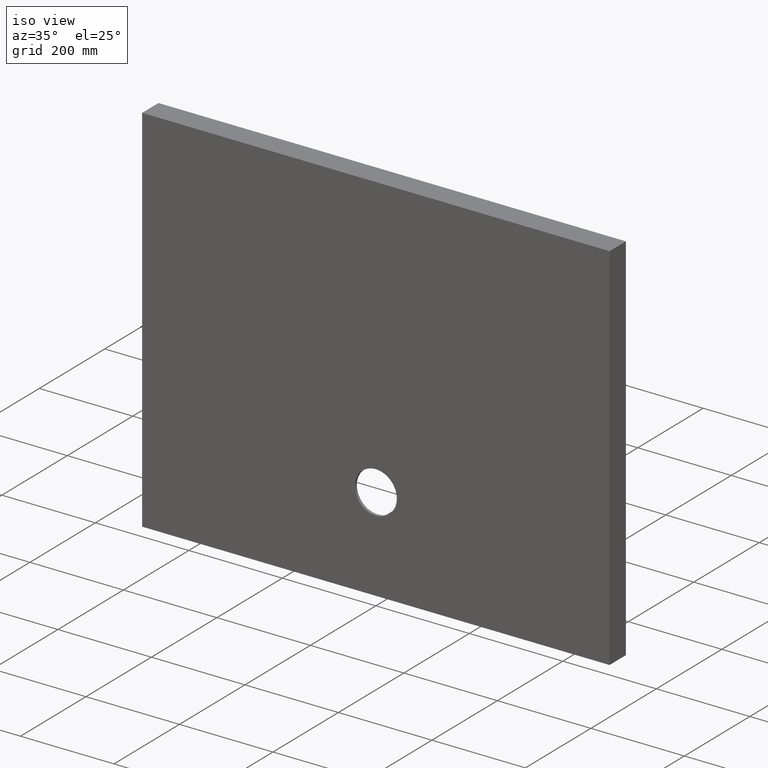
[diagram: clean part render]
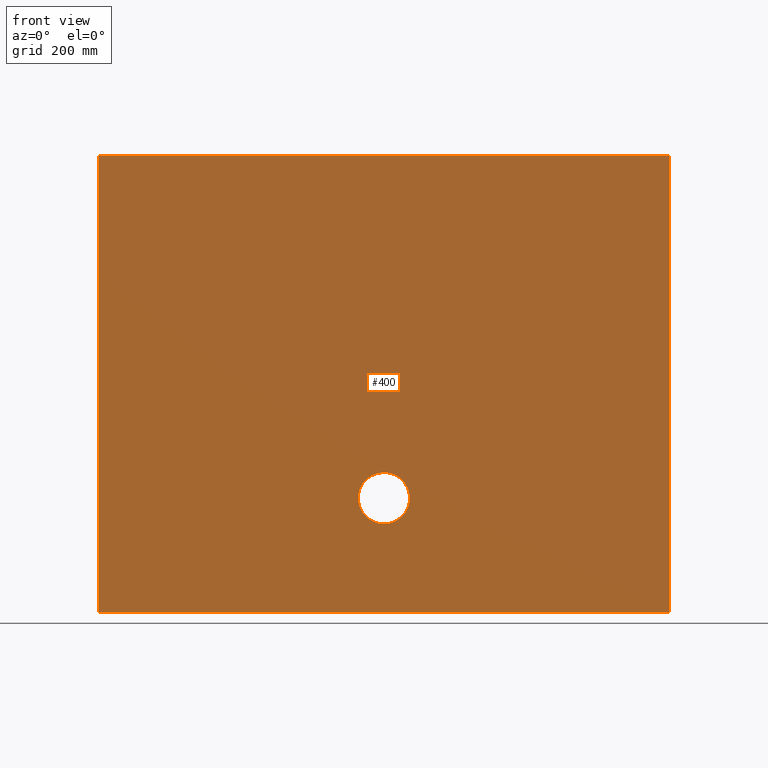
[diagram: tour spotlight — one face highlighted and labeled with its STEP entity id]
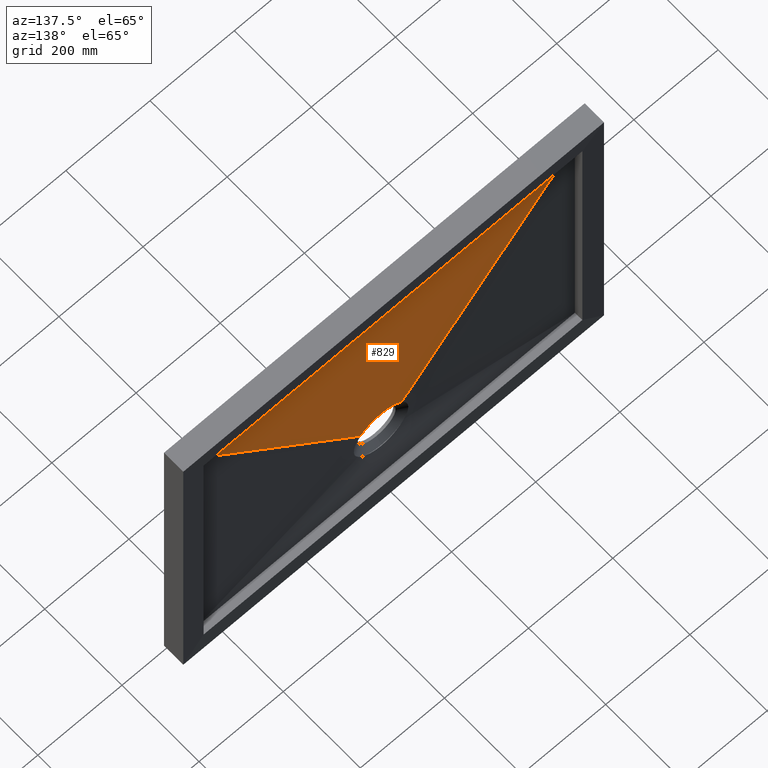
[diagram: tour spotlight — one face highlighted and labeled with its STEP entity id]
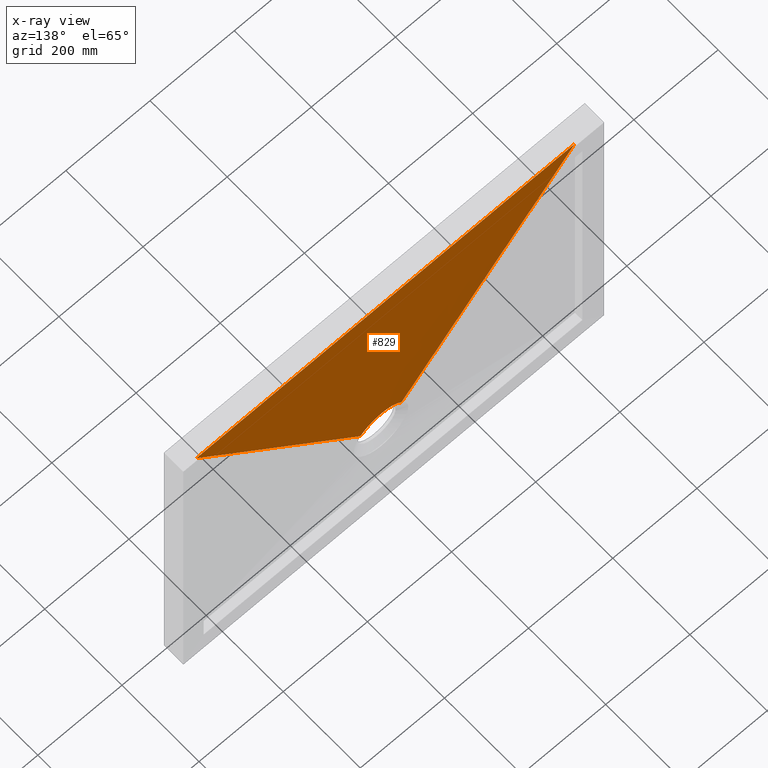
[diagram: x-ray of the same camera — body ghosted, this tour face saturated]
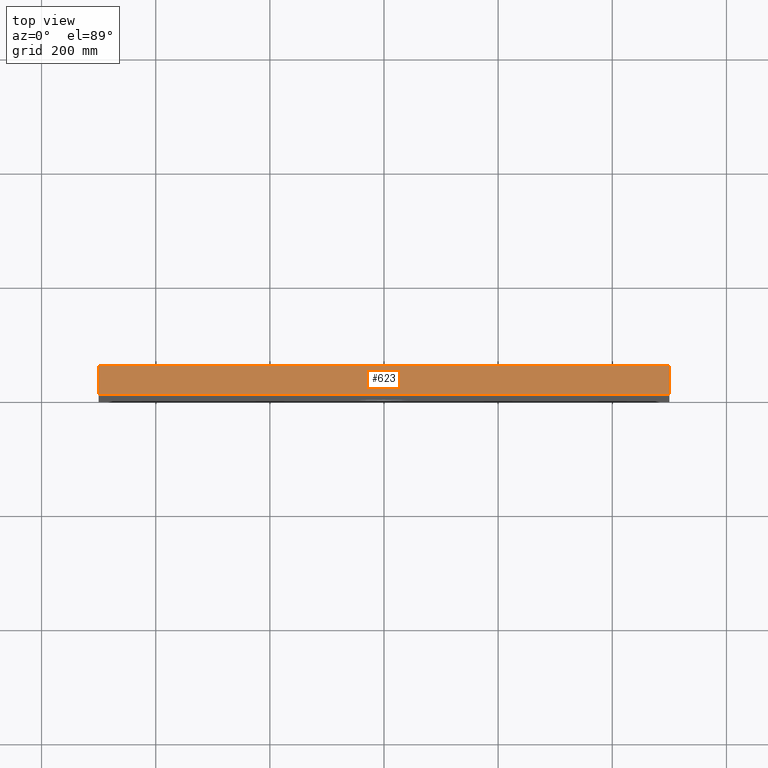
[diagram: tour spotlight — one face highlighted and labeled with its STEP entity id]
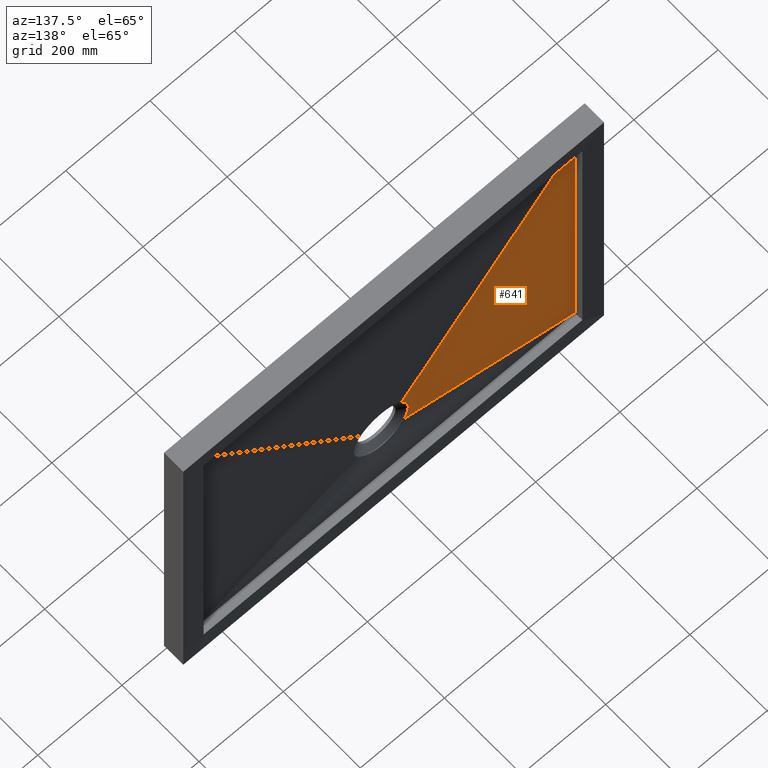
[diagram: tour spotlight — one face highlighted and labeled with its STEP entity id]
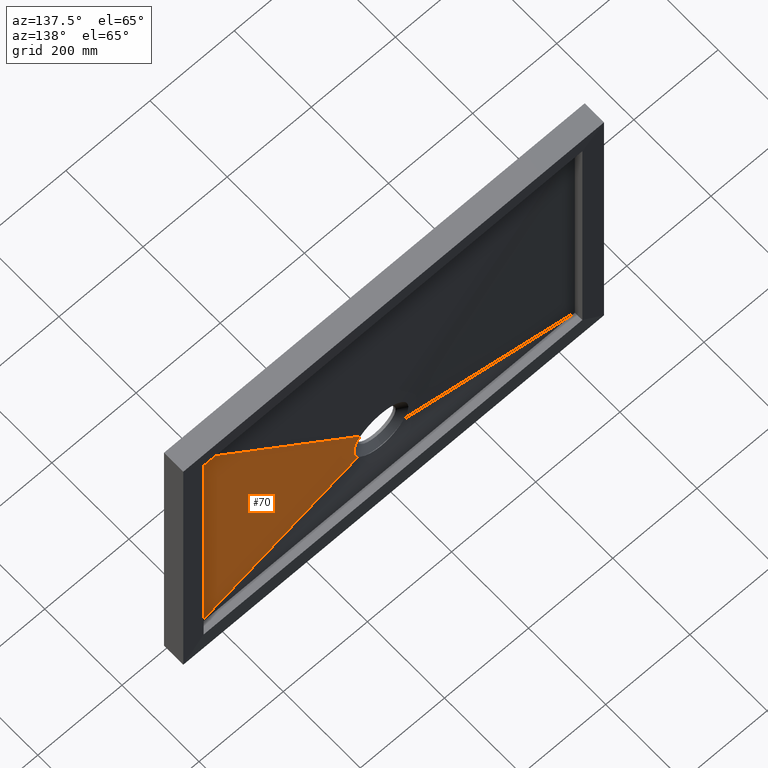
[diagram: tour spotlight — one face highlighted and labeled with its STEP entity id]
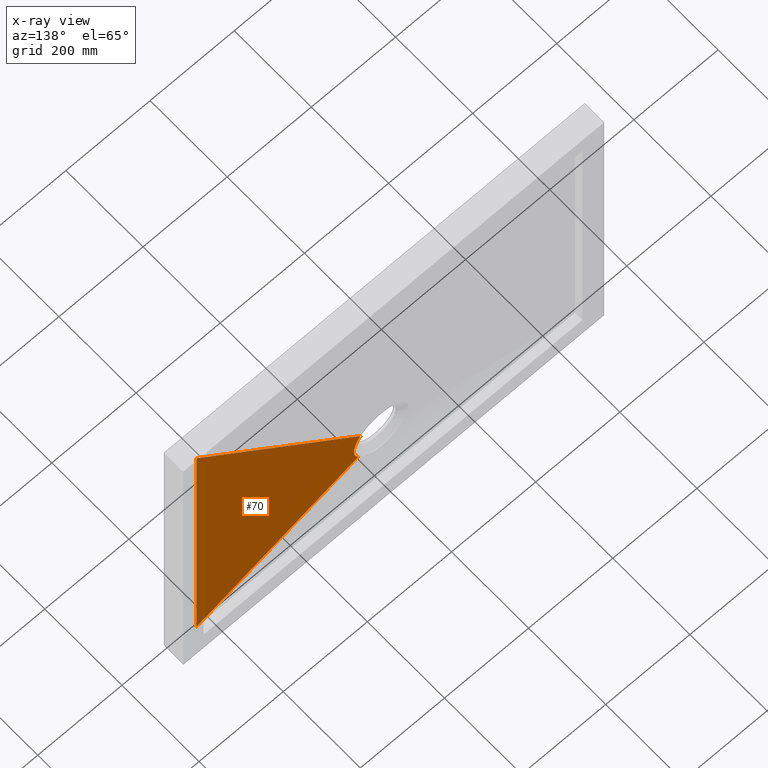
[diagram: x-ray of the same camera — body ghosted, this tour face saturated]
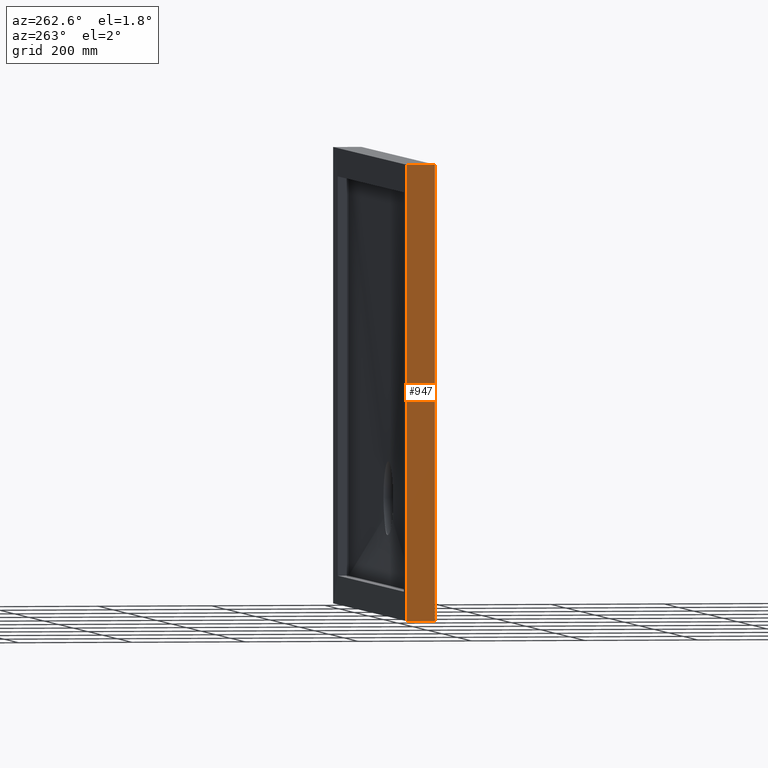
[diagram: tour spotlight — one face highlighted and labeled with its STEP entity id]
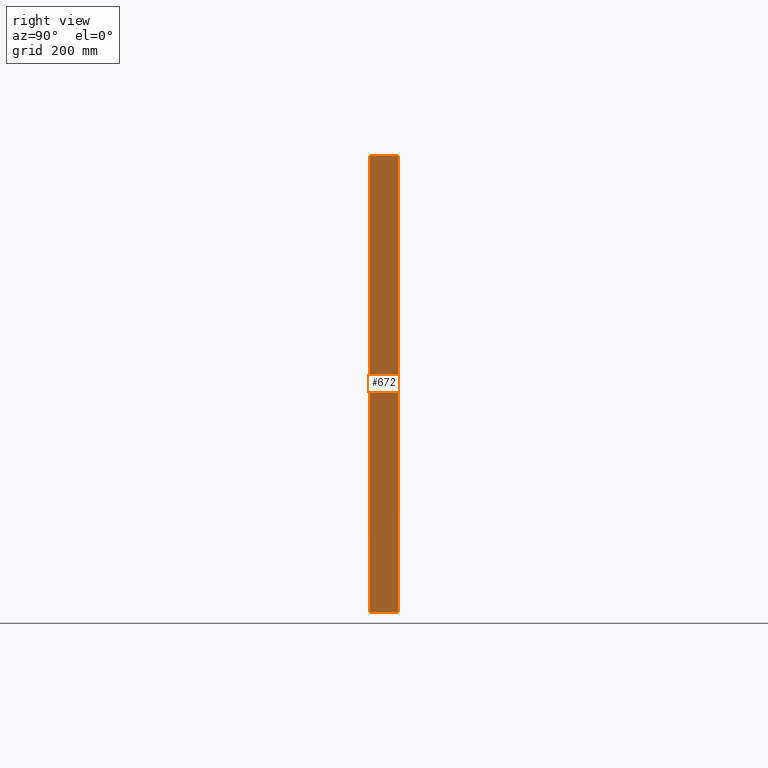
[diagram: tour spotlight — one face highlighted and labeled with its STEP entity id]
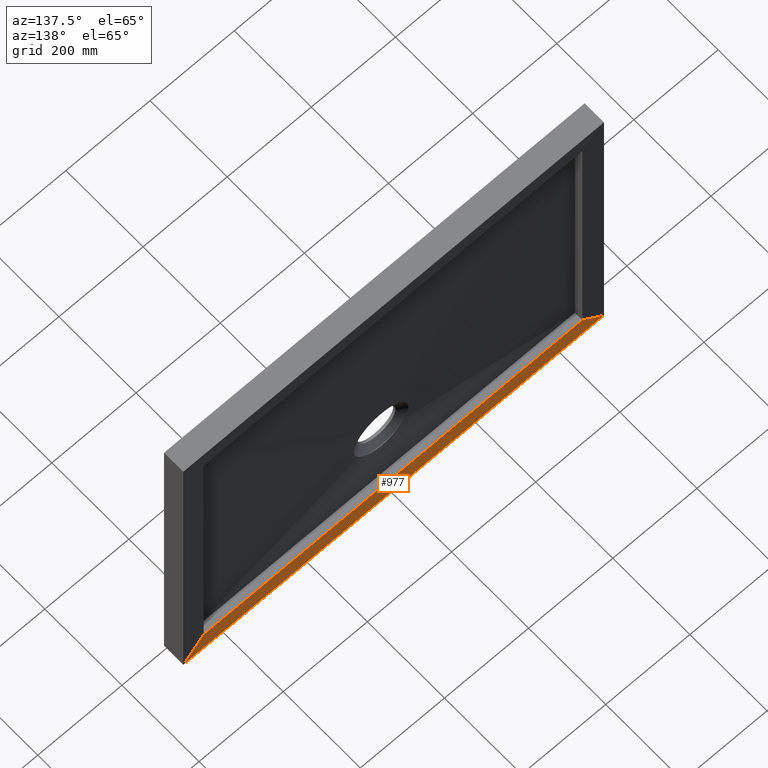
[diagram: tour spotlight — one face highlighted and labeled with its STEP entity id]
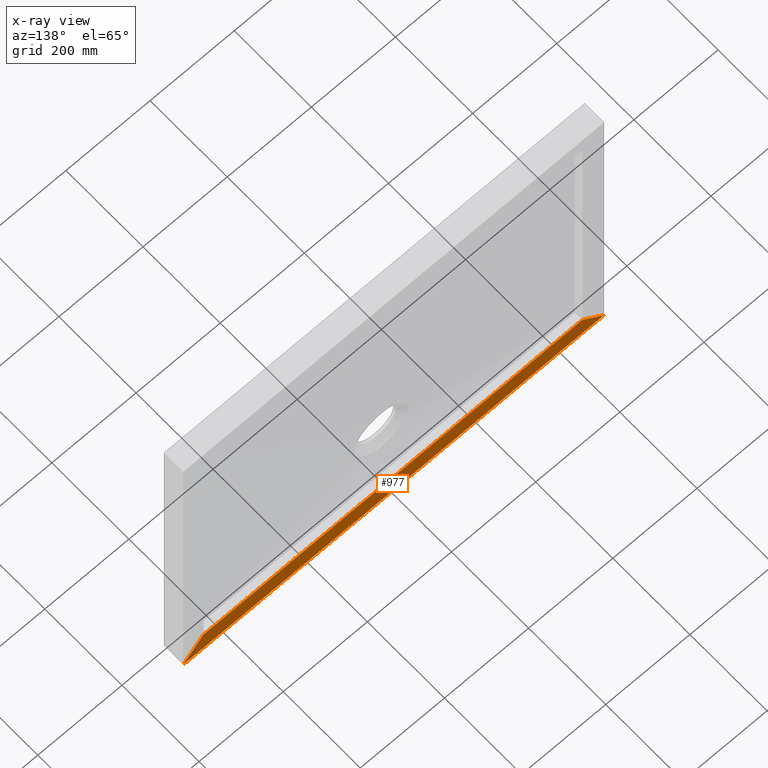
[diagram: x-ray of the same camera — body ghosted, this tour face saturated]
A machine part: a face-by-face anatomy tour. The part has 24 B-rep faces; the first image is the clean iso view, then the 8 largest visible faces are spotlighted one at a time (largest first), each with its STEP entity span.

Face 1 — front view, entity #400. In plain terms, the highlighted planar face has unit normal (0, 1, 0).
Definition (entity closure, byte-faithful):
#36 = CARTESIAN_POINT ( 'NONE',  ( 1.110223024625156500E-013, 0.0000000000000000000, -199.9999999999998600 ) ) ;
#98 = CARTESIAN_POINT ( 'NONE',  ( 500.0000000000001100, 0.0000000000000000000, -399.9999999999998300 ) ) ;
#99 = AXIS2_PLACEMENT_3D ( 'NONE', #167, #461, #598 ) ;
#112 = AXIS2_PLACEMENT_3D ( 'NONE', #198, #622, #401 ) ;
#150 = VERTEX_POINT ( 'NONE', #530 ) ;
#158 = DIRECTION ( 'NONE',  ( 1.387778780781445700E-016, 0.0000000000000000000, 1.000000000000000000 ) ) ;
#167 = CARTESIAN_POINT ( 'NONE',  ( -499.9999999999997700, 0.0000000000000000000, 400.0000000000001700 ) ) ;
#169 = CARTESIAN_POINT ( 'NONE',  ( -499.9999999999998900, 0.0000000000000000000, -399.9999999999998300 ) ) ;
#170 = CARTESIAN_POINT ( 'NONE',  ( 1.110223024625156500E-013, 0.0000000000000000000, -154.9999999999998900 ) ) ;
#178 = EDGE_CURVE ( 'NONE', #567, #353, #468, .T. ) ;
#186 = ORIENTED_EDGE ( 'NONE', *, *, #234, .F. ) ;
#198 = CARTESIAN_POINT ( 'NONE',  ( 1.110223024625156500E-013, 0.0000000000000000000, -199.9999999999998600 ) ) ;
#229 = CARTESIAN_POINT ( 'NONE',  ( -499.9999999999998900, 0.0000000000000000000, -399.9999999999998300 ) ) ;
#234 = EDGE_CURVE ( 'NONE', #150, #348, #750, .T. ) ;
#242 = EDGE_LOOP ( 'NONE', ( #604, #456, #610, #186 ) ) ;
#261 = EDGE_CURVE ( 'NONE', #353, #567, #807, .T. ) ;
#267 = ORIENTED_EDGE ( 'NONE', *, *, #178, .T. ) ;
#328 = LINE ( 'NONE', #98, #766 ) ;
#348 = VERTEX_POINT ( 'NONE', #637 ) ;
#353 = VERTEX_POINT ( 'NONE', #170 ) ;
#371 = FACE_BOUND ( 'NONE', #674, .T. ) ;
#373 = EDGE_CURVE ( 'NONE', #348, #405, #328, .T. ) ;
#388 = EDGE_CURVE ( 'NONE', #405, #1014, #551, .T. ) ;
#394 = CARTESIAN_POINT ( 'NONE',  ( -499.9999999999998900, 0.0000000000000000000, -399.9999999999998300 ) ) ;
#400 = ADVANCED_FACE ( 'NONE', ( #371, #944 ), #614, .F. ) ;
#401 = DIRECTION ( 'NONE',  ( 0.0000000000000000000, 0.0000000000000000000, 1.000000000000000000 ) ) ;
#405 = VERTEX_POINT ( 'NONE', #904 ) ;
#435 = CARTESIAN_POINT ( 'NONE',  ( -499.9999999999997700, 0.0000000000000000000, 400.0000000000001700 ) ) ;
#456 = ORIENTED_EDGE ( 'NONE', *, *, #388, .F. ) ;
#461 = DIRECTION ( 'NONE',  ( 0.0000000000000000000, 1.000000000000000000, 0.0000000000000000000 ) ) ;
#468 = CIRCLE ( 'NONE', #112, 44.99999999999995700 ) ;
#486 = DIRECTION ( 'NONE',  ( 0.0000000000000000000, 0.0000000000000000000, 1.000000000000000000 ) ) ;
#530 = CARTESIAN_POINT ( 'NONE',  ( -499.9999999999997700, 0.0000000000000000000, 400.0000000000001700 ) ) ;
#551 = LINE ( 'NONE', #394, #868 ) ;
#552 = EDGE_CURVE ( 'NONE', #1014, #150, #555, .T. ) ;
#555 = LINE ( 'NONE', #229, #951 ) ;
#567 = VERTEX_POINT ( 'NONE', #877 ) ;
#597 = VECTOR ( 'NONE', #938, 1000.000000000000000 ) ;
#598 = DIRECTION ( 'NONE',  ( 0.0000000000000000000, -0.0000000000000000000, 1.000000000000000000 ) ) ;
#604 = ORIENTED_EDGE ( 'NONE', *, *, #552, .F. ) ;
#610 = ORIENTED_EDGE ( 'NONE', *, *, #373, .F. ) ;
#614 = PLANE ( 'NONE',  #99 ) ;
#622 = DIRECTION ( 'NONE',  ( 0.0000000000000000000, 1.000000000000000000, 0.0000000000000000000 ) ) ;
#637 = CARTESIAN_POINT ( 'NONE',  ( 500.0000000000002300, 0.0000000000000000000, 400.0000000000001700 ) ) ;
#662 = DIRECTION ( 'NONE',  ( -1.387778780781445700E-016, -0.0000000000000000000, -1.000000000000000000 ) ) ;
#674 = EDGE_LOOP ( 'NONE', ( #680, #267 ) ) ;
#680 = ORIENTED_EDGE ( 'NONE', *, *, #261, .T. ) ;
#712 = DIRECTION ( 'NONE',  ( 0.0000000000000000000, 1.000000000000000000, 0.0000000000000000000 ) ) ;
#750 = LINE ( 'NONE', #435, #597 ) ;
#753 = AXIS2_PLACEMENT_3D ( 'NONE', #36, #712, #486 ) ;
#766 = VECTOR ( 'NONE', #662, 1000.000000000000000 ) ;
#807 = CIRCLE ( 'NONE', #753, 44.99999999999995700 ) ;
#818 = DIRECTION ( 'NONE',  ( -1.000000000000000000, -0.0000000000000000000, -0.0000000000000000000 ) ) ;
#868 = VECTOR ( 'NONE', #818, 1000.000000000000000 ) ;
#877 = CARTESIAN_POINT ( 'NONE',  ( 1.165332130586787400E-013, 0.0000000000000000000, -244.9999999999998000 ) ) ;
#904 = CARTESIAN_POINT ( 'NONE',  ( 500.0000000000001100, 0.0000000000000000000, -399.9999999999998300 ) ) ;
#938 = DIRECTION ( 'NONE',  ( 1.000000000000000000, 0.0000000000000000000, 0.0000000000000000000 ) ) ;
#944 = FACE_OUTER_BOUND ( 'NONE', #242, .T. ) ;
#951 = VECTOR ( 'NONE', #158, 1000.000000000000000 ) ;
#1014 = VERTEX_POINT ( 'NONE', #169 ) ;

Face 2 — auxiliary view, entity #829. An x-ray twin of the same camera follows (body ghosted, this face saturated) — the face is partly hidden behind the body. In plain terms, the highlighted face is a freeform B-spline surface patch.
Definition (entity closure, byte-faithful):
#2 = EDGE_CURVE ( 'NONE', #912, #988, #606, .T. ) ;
#5 = CARTESIAN_POINT ( 'NONE',  ( 150.0000000000010800, 29.00000000000000400, 350.0000000000002300 ) ) ;
#31 = CARTESIAN_POINT ( 'NONE',  ( -6.649790402214011300E-014, 17.32753171431355800, -135.3801395464610400 ) ) ;
#42 = CARTESIAN_POINT ( 'NONE',  ( -40.25696308619268400, 17.00000000000000000, -168.6890287107388200 ) ) ;
#43 = CARTESIAN_POINT ( 'NONE',  ( 9.219988134964461700, 17.32476754570779300, -136.0355039813597700 ) ) ;
#44 = CARTESIAN_POINT ( 'NONE',  ( -131.2499999999989200, 29.00000000000000000, 350.0000000000002300 ) ) ;
#46 = CARTESIAN_POINT ( 'NONE',  ( 16.04824121374895200, 17.31921635395701000, -137.3767490206983300 ) ) ;
#50 = EDGE_CURVE ( 'NONE', #534, #912, #231, .T. ) ;
#52 = ORIENTED_EDGE ( 'NONE', *, *, #2, .F. ) ;
#60 = CARTESIAN_POINT ( 'NONE',  ( -28.93101260800292700, 17.30029041912234400, -142.2594490762226900 ) ) ;
#75 = CARTESIAN_POINT ( 'NONE',  ( -2.299691664269409900, 17.32753171431355500, -135.3801395464610400 ) ) ;
#102 = CARTESIAN_POINT ( 'NONE',  ( 38.19734770157749200, 16.99999999999999600, -166.0409517876618400 ) ) ;
#104 = CARTESIAN_POINT ( 'NONE',  ( -449.9999999999997700, 29.00000000000000000, 350.0000000000002300 ) ) ;
#105 = CARTESIAN_POINT ( 'NONE',  ( 450.0000000000002300, 29.00000000000000000, 350.0000000000002300 ) ) ;
#115 = CARTESIAN_POINT ( 'NONE',  ( -24.75279780087052800, 17.30763211981673800, -140.3016841817969900 ) ) ;
#123 = CARTESIAN_POINT ( 'NONE',  ( 32.04517180526613600, 17.29419359159566500, -143.9400926359729500 ) ) ;
#133 = CARTESIAN_POINT ( 'NONE',  ( 187.5000000000010200, 29.00000000000000400, 350.0000000000002300 ) ) ;
#137 = CARTESIAN_POINT ( 'NONE',  ( -6.649790402214011300E-014, 17.32753171431355800, -135.3801395464610400 ) ) ;
#152 = EDGE_CURVE ( 'NONE', #351, #534, #219, .T. ) ;
#173 = CARTESIAN_POINT ( 'NONE',  ( -374.9999999999996000, 29.00000000000000400, 350.0000000000002800 ) ) ;
#181 = CARTESIAN_POINT ( 'NONE',  ( 93.75000000000113700, 29.00000000000000400, 350.0000000000002300 ) ) ;
#205 = CARTESIAN_POINT ( 'NONE',  ( 35.02235572952306300, 17.28789454095838000, -145.7261570313716300 ) ) ;
#209 = CARTESIAN_POINT ( 'NONE',  ( -30.09080413276331700, 16.99999999999999600, -158.7791650302297300 ) ) ;
#219 = B_SPLINE_CURVE_WITH_KNOTS ( 'NONE', 3,
 ( #105, #729, #501, #384 ),
 .UNSPECIFIED., .F., .F.,
 ( 4, 4 ),
 ( 0.0000000000000000000, 1.000000000000000000 ),
 .UNSPECIFIED. ) ;
#224 = CARTESIAN_POINT ( 'NONE',  ( -30.97913410367706500, 17.29632513966301100, -143.3486486768623300 ) ) ;
#226 = CARTESIAN_POINT ( 'NONE',  ( -318.7499999999994300, 29.00000000000000400, 350.0000000000002800 ) ) ;
#227 = CARTESIAN_POINT ( 'NONE',  ( -16.03017960478391800, 17.31923655455719300, -137.3717812433093300 ) ) ;
#231 = LINE ( 'NONE', #444, #496 ) ;
#245 = CARTESIAN_POINT ( 'NONE',  ( -412.4999999999997200, 29.00000000000000400, 350.0000000000002300 ) ) ;
#251 = CARTESIAN_POINT ( 'NONE',  ( -93.74999999999889200, 29.00000000000000000, 350.0000000000002300 ) ) ;
#285 = CARTESIAN_POINT ( 'NONE',  ( -74.99999999999887700, 29.00000000000000000, 350.0000000000002300 ) ) ;
#298 = CARTESIAN_POINT ( 'NONE',  ( 24.77326687117305700, 17.30760041300131400, -140.3098532581493600 ) ) ;
#299 = ORIENTED_EDGE ( 'NONE', *, *, #50, .F. ) ;
#310 = CARTESIAN_POINT ( 'NONE',  ( -262.4999999999992600, 29.00000000000000400, 350.0000000000002800 ) ) ;
#322 = B_SPLINE_SURFACE_WITH_KNOTS ( 'NONE', 3, 1, ( 
 ( #635, #939 ),
 ( #513, #102 ),
 ( #909, #342 ),
 ( #558, #758 ),
 ( #899, #336 ),
 ( #880, #350 ),
 ( #613, #760 ),
 ( #1008, #470 ),
 ( #133, #529 ),
 ( #5, #968 ),
 ( #1004, #709 ),
 ( #181, #733 ),
 ( #727, #525 ),
 ( #634, #821 ),
 ( #972, #636 ),
 ( #751, #979 ),
 ( #409, #424 ),
 ( #285, #840 ),
 ( #251, #1027 ),
 ( #44, #657 ),
 ( #697, #381 ),
 ( #495, #764 ),
 ( #576, #885 ),
 ( #870, #737 ),
 ( #310, #665 ),
 ( #602, #209 ),
 ( #226, #653 ),
 ( #173, #995 ),
 ( #245, #324 ),
 ( #104, #42 ) ),
 .UNSPECIFIED., .F., .F., .F.,
 ( 4, 2, 2, 2, 2, 2, 2, 2, 2, 2, 2, 2, 2, 2, 4 ),
 ( 2, 2 ),
 ( 0.0000000000000000000, 0.1250000000000000000, 0.1875000000000000000, 0.2500000000000000000, 0.3125000000000000000, 0.3750000000000000000, 0.4375000000000000000, 0.5000000000000000000, 0.5625000000000000000, 0.6250000000000000000, 0.6875000000000000000, 0.7500000000000000000, 0.8125000000000000000, 0.8750000000000000000, 1.000000000000000000 ),
 ( 0.0000000000000000000, 1.000000000000000000 ),
 .UNSPECIFIED. ) ;
#324 = CARTESIAN_POINT ( 'NONE',  ( -38.19734770157727900, 17.00000000000000000, -166.0409517876618400 ) ) ;
#331 = VECTOR ( 'NONE', #509, 1000.000000000000100 ) ;
#333 = CARTESIAN_POINT ( 'NONE',  ( 40.58818086895994500, 17.27443714832651300, -149.7833365031333400 ) ) ;
#336 = CARTESIAN_POINT ( 'NONE',  ( 30.09080413276353700, 16.99999999999999600, -158.7791650302297300 ) ) ;
#342 = CARTESIAN_POINT ( 'NONE',  ( 35.77278929871904700, 17.00000000000000000, -163.4659907663368000 ) ) ;
#347 = CARTESIAN_POINT ( 'NONE',  ( -4.597219850884439300, 17.32700768843141900, -135.5034516496202200 ) ) ;
#349 = CARTESIAN_POINT ( 'NONE',  ( -36.90842480942388400, 17.28354743504848300, -147.0004462873297100 ) ) ;
#350 = CARTESIAN_POINT ( 'NONE',  ( 26.93862743730413500, 16.99999999999999600, -156.6534421117951000 ) ) ;
#351 = VERTEX_POINT ( 'NONE', #843 ) ;
#354 = CARTESIAN_POINT ( 'NONE',  ( -18.25376575803418800, 17.31673177761756600, -137.9887031508110300 ) ) ;
#368 = CARTESIAN_POINT ( 'NONE',  ( -31.99350040202621800, 17.29427699154957300, -143.9193419512050100 ) ) ;
#372 = CARTESIAN_POINT ( 'NONE',  ( 245.1284815430965400, 23.00000000000000000, 90.65548564463070100 ) ) ;
#381 = CARTESIAN_POINT ( 'NONE',  ( -16.21857928232064700, 17.00000000000000000, -151.6057683946429500 ) ) ;
#384 = CARTESIAN_POINT ( 'NONE',  ( -449.9999999999997700, 28.99999999999991500, 350.0000000000002300 ) ) ;
#391 = CARTESIAN_POINT ( 'NONE',  ( -45.69489298447024300, 17.26027860218298900, -154.4152584865172700 ) ) ;
#409 = CARTESIAN_POINT ( 'NONE',  ( -37.49999999999884900, 29.00000000000000000, 350.0000000000002300 ) ) ;
#416 = VERTEX_POINT ( 'NONE', #1012 ) ;
#424 = CARTESIAN_POINT ( 'NONE',  ( -4.157154706687845400, 17.00000000000000000, -149.1275462393711300 ) ) ;
#444 = CARTESIAN_POINT ( 'NONE',  ( -245.1284815430962600, 23.00000000000000000, 90.65548564463068700 ) ) ;
#453 = CARTESIAN_POINT ( 'NONE',  ( 45.69412244228389100, 17.26028061284561600, -154.4146284807502800 ) ) ;
#454 = CARTESIAN_POINT ( 'NONE',  ( 4.604916402979688100, 17.32700689078377100, -135.5036235431906600 ) ) ;
#464 = CARTESIAN_POINT ( 'NONE',  ( -30.46916744848787000, 17.29733078523574400, -143.0707940954450200 ) ) ;
#470 = CARTESIAN_POINT ( 'NONE',  ( 21.79583720548917500, 17.00000000000000400, -153.8503710909187400 ) ) ;
#484 = CARTESIAN_POINT ( 'NONE',  ( 27.92775497860187500, 17.30212859994372100, -141.7640752699404300 ) ) ;
#490 = B_SPLINE_CURVE_WITH_KNOTS ( 'NONE', 3,
 ( #31, #575, #454, #532, #43, #492, #989, #46, #630, #681, #298, #484, #718, #646, #123, #205, #800, #333, #669, #453, #945, #691 ),
 .UNSPECIFIED., .F., .F.,
 ( 4, 2, 2, 2, 2, 2, 2, 2, 2, 2, 4 ),
 ( 0.05518431373754408000, 0.06208740206802024200, 0.06553894623325831600, 0.06899049039849639000, 0.07589357872897252400, 0.08279666705944867300, 0.08624821122468676000, 0.08969975538992483500, 0.09660284372040098300, 0.1035059320508771300, 0.1104090203813532700 ),
 .UNSPECIFIED. ) ;
#492 = CARTESIAN_POINT ( 'NONE',  ( 11.51941567294618300, 17.32319743045181300, -136.4121351342121500 ) ) ;
#495 = CARTESIAN_POINT ( 'NONE',  ( -187.4999999999990600, 29.00000000000000400, 350.0000000000002800 ) ) ;
#496 = VECTOR ( 'NONE', #802, 1000.000000000000000 ) ;
#501 = CARTESIAN_POINT ( 'NONE',  ( -149.9999999999998000, 28.99999999999991500, 350.0000000000002300 ) ) ;
#504 = CARTESIAN_POINT ( 'NONE',  ( -449.9999999999997700, 28.99999999999991500, 350.0000000000002300 ) ) ;
#509 = DIRECTION ( 'NONE',  ( -0.6197767151398176900, -0.01815118235491164700, -0.7845682621350522600 ) ) ;
#513 = CARTESIAN_POINT ( 'NONE',  ( 412.5000000000004000, 29.00000000000000000, 350.0000000000002300 ) ) ;
#524 = CARTESIAN_POINT ( 'NONE',  ( -8.040228958489873200, 17.32543783195871300, -135.8755513818293500 ) ) ;
#525 = CARTESIAN_POINT ( 'NONE',  ( 8.268042586498731700, 17.00000000000000000, -149.6320741079156000 ) ) ;
#529 = CARTESIAN_POINT ( 'NONE',  ( 19.97872975558259500, 17.00000000000000000, -153.0330507275247100 ) ) ;
#532 = CARTESIAN_POINT ( 'NONE',  ( 8.063554293309552500, 17.32542582480254700, -135.8784060993898500 ) ) ;
#534 = VERTEX_POINT ( 'NONE', #504 ) ;
#545 = ORIENTED_EDGE ( 'NONE', *, *, #152, .F. ) ;
#546 = EDGE_CURVE ( 'NONE', #351, #416, #608, .T. ) ;
#558 = CARTESIAN_POINT ( 'NONE',  ( 318.7500000000006300, 29.00000000000000400, 350.0000000000002300 ) ) ;
#562 = CARTESIAN_POINT ( 'NONE',  ( -6.649790402214011300E-014, 17.32753171431355800, -135.3801395464610400 ) ) ;
#566 = CARTESIAN_POINT ( 'NONE',  ( -47.29450572101411900, 17.25543873150786600, -156.0878845468650700 ) ) ;
#575 = CARTESIAN_POINT ( 'NONE',  ( 2.301374954746986400, 17.32753171431355500, -135.3801395464610400 ) ) ;
#576 = CARTESIAN_POINT ( 'NONE',  ( -206.2499999999990900, 29.00000000000000400, 350.0000000000002800 ) ) ;
#582 = CARTESIAN_POINT ( 'NONE',  ( -40.58059723109098400, 17.27445757053065400, -149.7768228130765100 ) ) ;
#602 = CARTESIAN_POINT ( 'NONE',  ( -299.9999999999993200, 29.00000000000000400, 350.0000000000002800 ) ) ;
#606 = B_SPLINE_CURVE_WITH_KNOTS ( 'NONE', 3,
 ( #846, #566, #391, #848, #582, #349, #963, #1021, #368, #224, #464, #60, #820, #115, #693, #354, #227, #886, #814, #717, #524, #347, #75, #562 ),
 .UNSPECIFIED., .F., .F.,
 ( 4, 2, 2, 2, 2, 2, 2, 2, 2, 2, 2, 4 ),
 ( 0.0000000000000000000, 0.006898039217192991800, 0.01379607843438598400, 0.02069411765157897600, 0.02241862745587723200, 0.02414313726017549400, 0.02759215686877200200, 0.03449019608596502800, 0.04138823530315805000, 0.04483725491175455400, 0.04828627452035106500, 0.05518431373754408000 ),
 .UNSPECIFIED. ) ;
#608 = LINE ( 'NONE', #372, #331 ) ;
#613 = CARTESIAN_POINT ( 'NONE',  ( 243.7500000000009100, 29.00000000000000400, 350.0000000000002300 ) ) ;
#630 = CARTESIAN_POINT ( 'NONE',  ( 18.26828010606994800, 17.31671453120581500, -137.9929779603841700 ) ) ;
#634 = CARTESIAN_POINT ( 'NONE',  ( 37.50000000000114400, 29.00000000000000400, 350.0000000000002300 ) ) ;
#635 = CARTESIAN_POINT ( 'NONE',  ( 450.0000000000002300, 29.00000000000000000, 350.0000000000002300 ) ) ;
#636 = CARTESIAN_POINT ( 'NONE',  ( 2.078606174079377800, 17.00000000000000000, -148.9999999999996600 ) ) ;
#646 = CARTESIAN_POINT ( 'NONE',  ( 31.03233984916171900, 17.29624426659139000, -143.3689077206323100 ) ) ;
#652 = CARTESIAN_POINT ( 'NONE',  ( -48.81231317424583000, 17.25055752461324600, -157.8589087875878400 ) ) ;
#653 = CARTESIAN_POINT ( 'NONE',  ( -31.58016397642581600, 17.00000000000000400, -159.9119741762449100 ) ) ;
#657 = CARTESIAN_POINT ( 'NONE',  ( -14.27558496213693400, 16.99999999999998900, -150.9958988415855600 ) ) ;
#661 = EDGE_CURVE ( 'NONE', #988, #416, #490, .T. ) ;
#665 = CARTESIAN_POINT ( 'NONE',  ( -26.93862743730393200, 17.00000000000000000, -156.6534421117950700 ) ) ;
#669 = CARTESIAN_POINT ( 'NONE',  ( 42.34152003328630100, 17.26977622002218700, -151.2629849912369500 ) ) ;
#681 = CARTESIAN_POINT ( 'NONE',  ( 22.63078997624983300, 17.31090150528529700, -139.4595389884675300 ) ) ;
#691 = CARTESIAN_POINT ( 'NONE',  ( 48.81231317424593600, 17.25055752461324600, -157.8589087875879800 ) ) ;
#693 = CARTESIAN_POINT ( 'NONE',  ( -22.61507451870640800, 17.31092452549841800, -139.4536555087702300 ) ) ;
#697 = CARTESIAN_POINT ( 'NONE',  ( -149.9999999999989800, 29.00000000000000400, 350.0000000000002800 ) ) ;
#709 = CARTESIAN_POINT ( 'NONE',  ( 14.27558496213715200, 16.99999999999998900, -150.9958988415855600 ) ) ;
#717 = CARTESIAN_POINT ( 'NONE',  ( -9.187350402470681100, 17.32478709031417800, -136.0308338340325100 ) ) ;
#718 = CARTESIAN_POINT ( 'NONE',  ( 28.96935955611113300, 17.30021940505451300, -142.2786688376543500 ) ) ;
#727 = CARTESIAN_POINT ( 'NONE',  ( 75.00000000000115100, 29.00000000000000400, 350.0000000000002300 ) ) ;
#729 = CARTESIAN_POINT ( 'NONE',  ( 150.0000000000002600, 28.99999999999991500, 350.0000000000002300 ) ) ;
#733 = CARTESIAN_POINT ( 'NONE',  ( 10.30027545330002600, 16.99999999999999600, -150.0090149932864800 ) ) ;
#737 = CARTESIAN_POINT ( 'NONE',  ( -25.27579257315171200, 17.00000000000000400, -155.6606148245931300 ) ) ;
#751 = CARTESIAN_POINT ( 'NONE',  ( -18.74999999999884500, 29.00000000000000000, 350.0000000000002300 ) ) ;
#758 = CARTESIAN_POINT ( 'NONE',  ( 31.58016397642604600, 17.00000000000000700, -159.9119741762449100 ) ) ;
#760 = CARTESIAN_POINT ( 'NONE',  ( 25.27579257315192900, 17.00000000000000000, -155.6606148245931300 ) ) ;
#764 = CARTESIAN_POINT ( 'NONE',  ( -19.97872975558237100, 16.99999999999999600, -153.0330507275246800 ) ) ;
#796 = ORIENTED_EDGE ( 'NONE', *, *, #546, .T. ) ;
#800 = CARTESIAN_POINT ( 'NONE',  ( 36.92859757880845700, 17.28349913832068200, -147.0149239531733700 ) ) ;
#802 = DIRECTION ( 'NONE',  ( 0.6197767151398173600, -0.01815118235491165000, -0.7845682621350524900 ) ) ;
#814 = CARTESIAN_POINT ( 'NONE',  ( -11.48047563331483700, 17.32322667695170500, -136.4051020799652500 ) ) ;
#820 = CARTESIAN_POINT ( 'NONE',  ( -27.89457625982650100, 17.30218801258899900, -141.7481593007194900 ) ) ;
#821 = CARTESIAN_POINT ( 'NONE',  ( 4.157154706688059400, 17.00000000000000400, -149.1275462393711000 ) ) ;
#824 = FACE_OUTER_BOUND ( 'NONE', #895, .T. ) ;
#829 = ADVANCED_FACE ( 'NONE', ( #824 ), #322, .F. ) ;
#840 = CARTESIAN_POINT ( 'NONE',  ( -8.268042586498515000, 16.99999999999999600, -149.6320741079156000 ) ) ;
#843 = CARTESIAN_POINT ( 'NONE',  ( 450.0000000000002300, 29.00000000000000000, 350.0000000000002300 ) ) ;
#846 = CARTESIAN_POINT ( 'NONE',  ( -48.81231317424583000, 17.25055752461324600, -157.8589087875878400 ) ) ;
#848 = CARTESIAN_POINT ( 'NONE',  ( -42.33794565602497800, 17.26978617186965100, -151.2597192943947600 ) ) ;
#870 = CARTESIAN_POINT ( 'NONE',  ( -243.7499999999991800, 29.00000000000000400, 350.0000000000002800 ) ) ;
#880 = CARTESIAN_POINT ( 'NONE',  ( 262.5000000000008500, 29.00000000000000400, 350.0000000000002300 ) ) ;
#885 = CARTESIAN_POINT ( 'NONE',  ( -21.79583720548895100, 17.00000000000000000, -153.8503710909187700 ) ) ;
#886 = CARTESIAN_POINT ( 'NONE',  ( -12.62854807570212800, 17.32231404301578300, -136.6247214527361700 ) ) ;
#895 = EDGE_LOOP ( 'NONE', ( #52, #299, #545, #796, #1017 ) ) ;
#899 = CARTESIAN_POINT ( 'NONE',  ( 300.0000000000006800, 29.00000000000000400, 350.0000000000002300 ) ) ;
#909 = CARTESIAN_POINT ( 'NONE',  ( 375.0000000000005100, 29.00000000000000000, 350.0000000000002300 ) ) ;
#912 = VERTEX_POINT ( 'NONE', #652 ) ;
#939 = CARTESIAN_POINT ( 'NONE',  ( 40.25696308619289000, 17.00000000000000000, -168.6890287107388200 ) ) ;
#945 = CARTESIAN_POINT ( 'NONE',  ( 47.29340465570715700, 17.25544227248901000, -156.0865997901292400 ) ) ;
#963 = CARTESIAN_POINT ( 'NONE',  ( -34.99360891617970300, 17.28796030060354700, -145.7069564781890000 ) ) ;
#968 = CARTESIAN_POINT ( 'NONE',  ( 16.21857928232086400, 17.00000000000000000, -151.6057683946429200 ) ) ;
#972 = CARTESIAN_POINT ( 'NONE',  ( 18.75000000000114800, 29.00000000000000000, 350.0000000000002300 ) ) ;
#979 = CARTESIAN_POINT ( 'NONE',  ( -2.078606174079163300, 16.99999999999999600, -148.9999999999996600 ) ) ;
#988 = VERTEX_POINT ( 'NONE', #137 ) ;
#989 = CARTESIAN_POINT ( 'NONE',  ( 12.65903222114412900, 17.32228836020405900, -136.6309244644992900 ) ) ;
#995 = CARTESIAN_POINT ( 'NONE',  ( -35.77278929871884800, 17.00000000000001100, -163.4659907663368000 ) ) ;
#1004 = CARTESIAN_POINT ( 'NONE',  ( 131.2500000000010800, 29.00000000000000400, 350.0000000000002300 ) ) ;
#1008 = CARTESIAN_POINT ( 'NONE',  ( 206.2500000000009900, 29.00000000000000400, 350.0000000000002300 ) ) ;
#1012 = CARTESIAN_POINT ( 'NONE',  ( 48.81231317424593600, 17.25055752461324600, -157.8589087875879800 ) ) ;
#1017 = ORIENTED_EDGE ( 'NONE', *, *, #661, .F. ) ;
#1021 = CARTESIAN_POINT ( 'NONE',  ( -32.49834619834371100, 17.29323347945284400, -144.2124733828088700 ) ) ;
#1027 = CARTESIAN_POINT ( 'NONE',  ( -10.30027545329981100, 16.99999999999998900, -150.0090149932864800 ) ) ;

Face 3 — top view, entity #623. In plain terms, the highlighted planar face has unit normal (0, 0, -1).
Definition (entity closure, byte-faithful):
#6 = EDGE_CURVE ( 'NONE', #517, #150, #890, .T. ) ;
#23 = CARTESIAN_POINT ( 'NONE',  ( 500.0000000000002300, 50.00000000000000000, 400.0000000000001700 ) ) ;
#34 = AXIS2_PLACEMENT_3D ( 'NONE', #806, #520, #278 ) ;
#37 = VECTOR ( 'NONE', #932, 1000.000000000000000 ) ;
#100 = EDGE_CURVE ( 'NONE', #517, #903, #1022, .T. ) ;
#131 = CARTESIAN_POINT ( 'NONE',  ( -499.9999999999997700, 50.00000000000000000, 400.0000000000001700 ) ) ;
#135 = VECTOR ( 'NONE', #215, 1000.000000000000000 ) ;
#150 = VERTEX_POINT ( 'NONE', #530 ) ;
#215 = DIRECTION ( 'NONE',  ( -0.0000000000000000000, -1.000000000000000000, -0.0000000000000000000 ) ) ;
#233 = FACE_OUTER_BOUND ( 'NONE', #362, .T. ) ;
#234 = EDGE_CURVE ( 'NONE', #150, #348, #750, .T. ) ;
#278 = DIRECTION ( 'NONE',  ( -1.000000000000000000, 0.0000000000000000000, -0.0000000000000000000 ) ) ;
#326 = CARTESIAN_POINT ( 'NONE',  ( -499.9999999999997700, 50.00000000000000000, 400.0000000000001700 ) ) ;
#348 = VERTEX_POINT ( 'NONE', #637 ) ;
#362 = EDGE_LOOP ( 'NONE', ( #892, #482, #380, #798 ) ) ;
#380 = ORIENTED_EDGE ( 'NONE', *, *, #100, .F. ) ;
#382 = PLANE ( 'NONE',  #34 ) ;
#396 = EDGE_CURVE ( 'NONE', #903, #348, #679, .T. ) ;
#435 = CARTESIAN_POINT ( 'NONE',  ( -499.9999999999997700, 0.0000000000000000000, 400.0000000000001700 ) ) ;
#482 = ORIENTED_EDGE ( 'NONE', *, *, #396, .F. ) ;
#517 = VERTEX_POINT ( 'NONE', #131 ) ;
#520 = DIRECTION ( 'NONE',  ( 0.0000000000000000000, 0.0000000000000000000, -1.000000000000000000 ) ) ;
#530 = CARTESIAN_POINT ( 'NONE',  ( -499.9999999999997700, 0.0000000000000000000, 400.0000000000001700 ) ) ;
#597 = VECTOR ( 'NONE', #938, 1000.000000000000000 ) ;
#623 = ADVANCED_FACE ( 'NONE', ( #233 ), #382, .F. ) ;
#637 = CARTESIAN_POINT ( 'NONE',  ( 500.0000000000002300, 0.0000000000000000000, 400.0000000000001700 ) ) ;
#679 = LINE ( 'NONE', #889, #135 ) ;
#750 = LINE ( 'NONE', #435, #597 ) ;
#782 = CARTESIAN_POINT ( 'NONE',  ( -499.9999999999997700, 50.00000000000000000, 400.0000000000001700 ) ) ;
#798 = ORIENTED_EDGE ( 'NONE', *, *, #6, .T. ) ;
#806 = CARTESIAN_POINT ( 'NONE',  ( -499.9999999999997700, 50.00000000000000000, 400.0000000000001700 ) ) ;
#875 = DIRECTION ( 'NONE',  ( 1.000000000000000000, 0.0000000000000000000, 0.0000000000000000000 ) ) ;
#889 = CARTESIAN_POINT ( 'NONE',  ( 500.0000000000002300, 50.00000000000000000, 400.0000000000001700 ) ) ;
#890 = LINE ( 'NONE', #326, #37 ) ;
#892 = ORIENTED_EDGE ( 'NONE', *, *, #234, .T. ) ;
#903 = VERTEX_POINT ( 'NONE', #23 ) ;
#932 = DIRECTION ( 'NONE',  ( -0.0000000000000000000, -1.000000000000000000, -0.0000000000000000000 ) ) ;
#938 = DIRECTION ( 'NONE',  ( 1.000000000000000000, 0.0000000000000000000, 0.0000000000000000000 ) ) ;
#957 = VECTOR ( 'NONE', #875, 1000.000000000000000 ) ;
#1022 = LINE ( 'NONE', #782, #957 ) ;

Face 4 — auxiliary view, entity #641. In plain terms, the highlighted face is a freeform B-spline surface patch.
Definition (entity closure, byte-faithful):
#3 = CARTESIAN_POINT ( 'NONE',  ( -55.94343965845735800, 17.29619837150483300, -167.7190360685555400 ) ) ;
#9 = CARTESIAN_POINT ( 'NONE',  ( -449.9999999999997700, 29.00000000000000000, 320.8333333333335400 ) ) ;
#11 = CARTESIAN_POINT ( 'NONE',  ( -58.00251154661324200, 17.31386007989906500, -171.5546947920953800 ) ) ;
#22 = VERTEX_POINT ( 'NONE', #457 ) ;
#24 = CARTESIAN_POINT ( 'NONE',  ( -56.80271401680912600, 17.30319142559393700, -169.2303386989527800 ) ) ;
#29 = CARTESIAN_POINT ( 'NONE',  ( -43.34481905144973300, 16.99999999999999600, -227.0131164243427700 ) ) ;
#40 = CARTESIAN_POINT ( 'NONE',  ( -449.9999999999998900, 29.00000000000000400, 58.33333333333345600 ) ) ;
#48 = CARTESIAN_POINT ( 'NONE',  ( -449.9999999999998900, 29.00000000000000000, -349.9999999999998900 ) ) ;
#50 = EDGE_CURVE ( 'NONE', #534, #912, #231, .T. ) ;
#54 = CARTESIAN_POINT ( 'NONE',  ( -449.9999999999998900, 29.00000000000000400, -58.33333333333321500 ) ) ;
#65 = CARTESIAN_POINT ( 'NONE',  ( -48.81231317424583000, 17.25055752461324600, -157.8589087875878400 ) ) ;
#82 = CARTESIAN_POINT ( 'NONE',  ( -64.83360639573616900, 17.42990193009239200, -202.6924021868668100 ) ) ;
#84 = CARTESIAN_POINT ( 'NONE',  ( -449.9999999999999400, 29.00000000000000400, -233.3333333333332300 ) ) ;
#88 = CARTESIAN_POINT ( 'NONE',  ( -449.9999999999999400, 29.00000000000000400, -145.8333333333332000 ) ) ;
#90 = CARTESIAN_POINT ( 'NONE',  ( -60.67008594913736600, 17.44063957720047900, -223.0693325201818600 ) ) ;
#107 = CARTESIAN_POINT ( 'NONE',  ( -59.48183040565832900, 17.32830165542976900, -174.7299994342045600 ) ) ;
#110 = EDGE_CURVE ( 'NONE', #534, #22, #884, .T. ) ;
#128 = CARTESIAN_POINT ( 'NONE',  ( -64.48109533562936200, 17.40539823145678300, -193.9893305301886200 ) ) ;
#130 = CARTESIAN_POINT ( 'NONE',  ( -54.25382942381499900, 17.40992129437162500, -235.3654013123290300 ) ) ;
#153 = CARTESIAN_POINT ( 'NONE',  ( -449.9999999999998300, 28.99999999999991500, 116.6666666666668600 ) ) ;
#171 = CARTESIAN_POINT ( 'NONE',  ( -49.76195733982525800, 17.00000000000000400, -188.4618333381923500 ) ) ;
#172 = CARTESIAN_POINT ( 'NONE',  ( -57.85103360511888600, 17.42892655442702600, -229.3884645401089400 ) ) ;
#175 = CARTESIAN_POINT ( 'NONE',  ( -449.9999999999998900, 29.00000000000000400, 116.6666666666668300 ) ) ;
#176 = CARTESIAN_POINT ( 'NONE',  ( -63.13710669175562600, 17.44392880522677200, -214.7068286423796100 ) ) ;
#183 = CARTESIAN_POINT ( 'NONE',  ( -449.9999999999998900, 29.00000000000000400, -116.6666666666665400 ) ) ;
#189 = CARTESIAN_POINT ( 'NONE',  ( -50.74803830526381200, 17.00000000000000700, -194.1674794150631800 ) ) ;
#191 = CARTESIAN_POINT ( 'NONE',  ( -53.18996872232808200, 17.27571326667720100, -163.2982698336968800 ) ) ;
#195 = CARTESIAN_POINT ( 'NONE',  ( -62.23431412592528700, 17.36070311456699900, -182.0548946003998500 ) ) ;
#211 = CARTESIAN_POINT ( 'NONE',  ( -64.35677942440607100, 17.43844454320704400, -207.8606024827834100 ) ) ;
#231 = LINE ( 'NONE', #444, #496 ) ;
#236 = CARTESIAN_POINT ( 'NONE',  ( -41.85888616311576300, 17.00000000000000000, -170.7486440953542200 ) ) ;
#255 = CARTESIAN_POINT ( 'NONE',  ( -449.9999999999998300, 29.00000000000000000, 233.3333333333335100 ) ) ;
#257 = CARTESIAN_POINT ( 'NONE',  ( -58.38757391295872200, 17.31744630580002600, -172.3390586520031000 ) ) ;
#258 = VECTOR ( 'NONE', #565, 1000.000000000000100 ) ;
#269 = CARTESIAN_POINT ( 'NONE',  ( -62.93244545356628800, 17.44407760582007700, -215.5605379382099000 ) ) ;
#282 = CARTESIAN_POINT ( 'NONE',  ( -449.9999999999999400, 29.00000000000000400, -320.8333333333332000 ) ) ;
#294 = CARTESIAN_POINT ( 'NONE',  ( -63.43825343770144800, 17.38089547326675100, -187.1056690646809100 ) ) ;
#313 = CARTESIAN_POINT ( 'NONE',  ( -45.98545348369101800, 16.99999999999999300, -177.7779419167054000 ) ) ;
#327 = CARTESIAN_POINT ( 'NONE',  ( -43.34481905144976800, 17.00000000000000400, -172.9868835756569500 ) ) ;
#330 = CARTESIAN_POINT ( 'NONE',  ( -64.87230785193793300, 17.42147754899662000, -199.2255590176701200 ) ) ;
#343 = CARTESIAN_POINT ( 'NONE',  ( -64.56154947753061900, 17.40819516625765900, -194.8645057134272600 ) ) ;
#356 = CARTESIAN_POINT ( 'NONE',  ( -47.13964138515812900, 17.00000000000000400, -219.6692732860850600 ) ) ;
#360 = CARTESIAN_POINT ( 'NONE',  ( -59.12751865840287700, 17.32466896320280700, -173.9272266418395200 ) ) ;
#374 = FACE_OUTER_BOUND ( 'NONE', #942, .T. ) ;
#383 = CARTESIAN_POINT ( 'NONE',  ( -449.9999999999998300, 28.99999999999991500, -116.6666666666665300 ) ) ;
#395 = CARTESIAN_POINT ( 'NONE',  ( -45.98545348369101800, 16.99999999999999600, -222.2220580832943100 ) ) ;
#407 = CARTESIAN_POINT ( 'NONE',  ( -63.67721673920765100, 17.44273262306014500, -212.1458283678735500 ) ) ;
#410 = CARTESIAN_POINT ( 'NONE',  ( -61.16340481181254100, 17.34638389046242700, -178.7589279204687200 ) ) ;
#418 = CARTESIAN_POINT ( 'NONE',  ( -51.12133234316555500, 17.26274093365814700, -160.5011695930355700 ) ) ;
#425 = CARTESIAN_POINT ( 'NONE',  ( -449.9999999999997700, 29.00000000000000000, 350.0000000000002300 ) ) ;
#444 = CARTESIAN_POINT ( 'NONE',  ( -245.1284815430962600, 23.00000000000000000, 90.65548564463068700 ) ) ;
#457 = CARTESIAN_POINT ( 'NONE',  ( -449.9999999999998900, 29.00000000000000000, -349.9999999999998900 ) ) ;
#471 = CARTESIAN_POINT ( 'NONE',  ( -54.25382942381499900, 17.40992129437162500, -235.3654013123290300 ) ) ;
#477 = CARTESIAN_POINT ( 'NONE',  ( -61.82358971380194400, 17.44387411615219800, -219.7971792896895500 ) ) ;
#481 = ORIENTED_EDGE ( 'NONE', *, *, #50, .T. ) ;
#496 = VECTOR ( 'NONE', #802, 1000.000000000000000 ) ;
#498 = CARTESIAN_POINT ( 'NONE',  ( -56.18548390979570700, 17.42044526686649100, -232.4354428339341000 ) ) ;
#504 = CARTESIAN_POINT ( 'NONE',  ( -449.9999999999997700, 28.99999999999991500, 350.0000000000002300 ) ) ;
#526 = VERTEX_POINT ( 'NONE', #130 ) ;
#534 = VERTEX_POINT ( 'NONE', #504 ) ;
#565 = DIRECTION ( 'NONE',  ( -0.9601348517843009100, 0.02811913121988031700, -0.2781193643897842400 ) ) ;
#590 = EDGE_CURVE ( 'NONE', #526, #912, #986, .T. ) ;
#592 = EDGE_CURVE ( 'NONE', #526, #22, #690, .T. ) ;
#594 = CARTESIAN_POINT ( 'NONE',  ( -63.50923737385853900, 17.44325659549715000, -213.0004183094528700 ) ) ;
#605 = CARTESIAN_POINT ( 'NONE',  ( -50.74803830526381900, 17.00000000000000400, -205.8325205849366200 ) ) ;
#626 = CARTESIAN_POINT ( 'NONE',  ( -40.25696308619267700, 17.00000000000000000, -168.6890287107388200 ) ) ;
#641 = ADVANCED_FACE ( 'NONE', ( #374 ), #696, .F. ) ;
#652 = CARTESIAN_POINT ( 'NONE',  ( -48.81231317424583000, 17.25055752461324600, -157.8589087875878400 ) ) ;
#656 = CARTESIAN_POINT ( 'NONE',  ( -449.9999999999998900, 29.00000000000000400, 29.16666666666679200 ) ) ;
#683 = CARTESIAN_POINT ( 'NONE',  ( -40.25696308619262700, 17.00000000000000000, -231.3109712892609200 ) ) ;
#686 = CARTESIAN_POINT ( 'NONE',  ( -449.9999999999998900, 29.00000000000000000, -349.9999999999998900 ) ) ;
#690 = LINE ( 'NONE', #958, #258 ) ;
#694 = ORIENTED_EDGE ( 'NONE', *, *, #592, .T. ) ;
#696 = B_SPLINE_SURFACE_WITH_KNOTS ( 'NONE', 3, 1, ( 
 ( #425, #626 ),
 ( #9, #236 ),
 ( #809, #327 ),
 ( #255, #313 ),
 ( #902, #708 ),
 ( #730, #699 ),
 ( #175, #171 ),
 ( #40, #189 ),
 ( #656, #858 ),
 ( #837, #825 ),
 ( #54, #605 ),
 ( #183, #748 ),
 ( #88, #887 ),
 ( #812, #356 ),
 ( #84, #395 ),
 ( #983, #29 ),
 ( #282, #845 ),
 ( #48, #683 ) ),
 .UNSPECIFIED., .F., .F., .F.,
 ( 4, 2, 2, 2, 2, 2, 2, 2, 4 ),
 ( 2, 2 ),
 ( 0.0000000000000000000, 0.1250000000000000000, 0.2500000000000000000, 0.3750000000000000000, 0.5000000000000000000, 0.6250000000000000000, 0.7500000000000000000, 0.8750000000000000000, 1.000000000000000000 ),
 ( 0.0000000000000000000, 1.000000000000000000 ),
 .UNSPECIFIED. ) ;
#699 = CARTESIAN_POINT ( 'NONE',  ( -49.02813586139550500, 17.00000000000000400, -185.6728231852691200 ) ) ;
#708 = CARTESIAN_POINT ( 'NONE',  ( -47.13964138515812200, 17.00000000000000700, -180.3307267139147700 ) ) ;
#711 = ORIENTED_EDGE ( 'NONE', *, *, #590, .F. ) ;
#713 = CARTESIAN_POINT ( 'NONE',  ( -64.16990191210288700, 17.39662583307990900, -191.3867545741586600 ) ) ;
#730 = CARTESIAN_POINT ( 'NONE',  ( -449.9999999999998900, 29.00000000000000400, 145.8333333333335100 ) ) ;
#745 = CARTESIAN_POINT ( 'NONE',  ( -64.12768268635663600, 17.44060555448565000, -209.5779643813620500 ) ) ;
#748 = CARTESIAN_POINT ( 'NONE',  ( -49.76195733982523700, 17.00000000000000400, -211.5381666618074000 ) ) ;
#771 = ORIENTED_EDGE ( 'NONE', *, *, #110, .F. ) ;
#802 = DIRECTION ( 'NONE',  ( 0.6197767151398173600, -0.01815118235491165000, -0.7845682621350524900 ) ) ;
#809 = CARTESIAN_POINT ( 'NONE',  ( -449.9999999999998300, 29.00000000000000000, 291.6666666666668600 ) ) ;
#812 = CARTESIAN_POINT ( 'NONE',  ( -449.9999999999999400, 29.00000000000000400, -204.1666666666665400 ) ) ;
#825 = CARTESIAN_POINT ( 'NONE',  ( -51.00000000000006400, 17.00000000000000400, -202.9164158762037000 ) ) ;
#837 = CARTESIAN_POINT ( 'NONE',  ( -449.9999999999998300, 29.00000000000000400, -29.16666666666655400 ) ) ;
#845 = CARTESIAN_POINT ( 'NONE',  ( -41.85888616311572000, 17.00000000000000400, -229.2513559046455500 ) ) ;
#858 = CARTESIAN_POINT ( 'NONE',  ( -51.00000000000005700, 17.00000000000000000, -197.0835841237960700 ) ) ;
#884 = B_SPLINE_CURVE_WITH_KNOTS ( 'NONE', 3,
 ( #994, #153, #383, #686 ),
 .UNSPECIFIED., .F., .F.,
 ( 4, 4 ),
 ( 0.0000000000000000000, 1.000000000000000000 ),
 .UNSPECIFIED. ) ;
#887 = CARTESIAN_POINT ( 'NONE',  ( -49.02813586139549100, 17.00000000000000400, -214.3271768147307100 ) ) ;
#902 = CARTESIAN_POINT ( 'NONE',  ( -449.9999999999998300, 29.00000000000000400, 204.1666666666668600 ) ) ;
#912 = VERTEX_POINT ( 'NONE', #652 ) ;
#942 = EDGE_LOOP ( 'NONE', ( #711, #694, #771, #481 ) ) ;
#958 = CARTESIAN_POINT ( 'NONE',  ( -245.1284815430962900, 23.00000000000000000, -290.6554856446304000 ) ) ;
#962 = CARTESIAN_POINT ( 'NONE',  ( -64.28529128837603000, 17.39961581225520600, -192.2511850759683800 ) ) ;
#983 = CARTESIAN_POINT ( 'NONE',  ( -449.9999999999999400, 29.00000000000000400, -291.6666666666665200 ) ) ;
#986 = B_SPLINE_CURVE_WITH_KNOTS ( 'NONE', 3,
 ( #471, #498, #172, #90, #477, #269, #176, #594, #407, #745, #211, #82, #330, #343, #128, #962, #713, #998, #294, #195, #410, #107, #360, #257, #11, #24, #3, #191, #418, #65 ),
 .UNSPECIFIED., .F., .F.,
 ( 4, 2, 2, 2, 2, 2, 2, 2, 2, 2, 2, 2, 2, 2, 4 ),
 ( 0.0000000000000000000, 0.01037900954807994100, 0.02075801909615988100, 0.02335277148317990700, 0.02594752387019993700, 0.03113702864423999900, 0.04151603819232004000, 0.04411079057934005200, 0.04670554296636006400, 0.05189504774040010200, 0.06227405728848016400, 0.06486880967550019700, 0.06746356206252023000, 0.07265306683656028200, 0.08303207638464041300 ),
 .UNSPECIFIED. ) ;
#994 = CARTESIAN_POINT ( 'NONE',  ( -449.9999999999997700, 28.99999999999991500, 350.0000000000002300 ) ) ;
#998 = CARTESIAN_POINT ( 'NONE',  ( -63.77213945296708900, 17.38739624750725500, -188.8071592686198100 ) ) ;

Face 5 — auxiliary view, entity #70. An x-ray twin of the same camera follows (body ghosted, this face saturated) — the face is partly hidden behind the body. In plain terms, the highlighted face is a freeform B-spline surface patch.
Definition (entity closure, byte-faithful):
#12 = CARTESIAN_POINT ( 'NONE',  ( 245.1284815430964800, 23.00000000000000000, -290.6554856446304000 ) ) ;
#15 = CARTESIAN_POINT ( 'NONE',  ( 50.74803830526403900, 17.00000000000000400, -194.1674794150631600 ) ) ;
#28 = CARTESIAN_POINT ( 'NONE',  ( 64.67702602613977100, 17.43268027074417900, -204.3789154029342100 ) ) ;
#55 = CARTESIAN_POINT ( 'NONE',  ( 47.13964138515833500, 17.00000000000000400, -180.3307267139147100 ) ) ;
#70 = ADVANCED_FACE ( 'NONE', ( #1028 ), #647, .F. ) ;
#73 = CARTESIAN_POINT ( 'NONE',  ( 49.02813586139569700, 17.00000000000000400, -185.6728231852690400 ) ) ;
#76 = CARTESIAN_POINT ( 'NONE',  ( 60.62111879234664300, 17.44004498840848400, -223.0017790596307600 ) ) ;
#94 = CARTESIAN_POINT ( 'NONE',  ( 450.0000000000001700, 29.00000000000000400, 116.6666666666670300 ) ) ;
#118 = CARTESIAN_POINT ( 'NONE',  ( 61.34850521779529900, 17.34970034539452000, -179.5596701979945600 ) ) ;
#129 = CARTESIAN_POINT ( 'NONE',  ( 450.0000000000002300, 29.00000000000000000, 350.0000000000002300 ) ) ;
#145 = ORIENTED_EDGE ( 'NONE', *, *, #546, .F. ) ;
#168 = CARTESIAN_POINT ( 'NONE',  ( 450.0000000000002800, 29.00000000000000400, 233.3333333333336800 ) ) ;
#188 = CARTESIAN_POINT ( 'NONE',  ( 450.0000000000002800, 29.00000000000000400, 320.8333333333336000 ) ) ;
#190 = CARTESIAN_POINT ( 'NONE',  ( 41.85888616311596900, 17.00000000000000000, -229.2513559046454900 ) ) ;
#196 = ORIENTED_EDGE ( 'NONE', *, *, #703, .F. ) ;
#202 = ORIENTED_EDGE ( 'NONE', *, *, #1003, .F. ) ;
#228 = CARTESIAN_POINT ( 'NONE',  ( 450.0000000000002300, 29.00000000000000000, 350.0000000000002300 ) ) ;
#237 = CARTESIAN_POINT ( 'NONE',  ( 64.76522095525157900, 17.42913869650604400, -202.6462630482070000 ) ) ;
#262 = CARTESIAN_POINT ( 'NONE',  ( 450.0000000000001700, 29.00000000000000400, -58.33333333333297300 ) ) ;
#270 = CARTESIAN_POINT ( 'NONE',  ( 49.76195733982547200, 17.00000000000000400, -211.5381666618074200 ) ) ;
#272 = CARTESIAN_POINT ( 'NONE',  ( 450.0000000000001100, 29.00000000000000000, -349.9999999999998900 ) ) ;
#279 = CARTESIAN_POINT ( 'NONE',  ( 60.45292748411161900, 17.33890472372547000, -177.0984769166464300 ) ) ;
#283 = CARTESIAN_POINT ( 'NONE',  ( 56.18564285211032700, 17.42044613281043700, -232.4352017481777800 ) ) ;
#291 = CARTESIAN_POINT ( 'NONE',  ( 45.98545348369126600, 16.99999999999999600, -177.7779419167053700 ) ) ;
#301 = CARTESIAN_POINT ( 'NONE',  ( 64.78158402998711600, 17.42062635920017400, -199.1601077213752500 ) ) ;
#304 = CARTESIAN_POINT ( 'NONE',  ( 40.25696308619287600, 17.00000000000000000, -231.3109712892608900 ) ) ;
#331 = VECTOR ( 'NONE', #509, 1000.000000000000100 ) ;
#332 = CARTESIAN_POINT ( 'NONE',  ( 49.76195733982546400, 17.00000000000000400, -188.4618333381923500 ) ) ;
#351 = VERTEX_POINT ( 'NONE', #843 ) ;
#358 = CARTESIAN_POINT ( 'NONE',  ( 51.12145846190609400, 17.26274159911654100, -160.5013139134505000 ) ) ;
#359 = CARTESIAN_POINT ( 'NONE',  ( 450.0000000000001100, 29.00000000000000000, -320.8333333333331400 ) ) ;
#372 = CARTESIAN_POINT ( 'NONE',  ( 245.1284815430965400, 23.00000000000000000, 90.65548564463070100 ) ) ;
#402 = CARTESIAN_POINT ( 'NONE',  ( 64.68138524654912700, 17.41328215621486600, -196.5323908396885600 ) ) ;
#416 = VERTEX_POINT ( 'NONE', #1012 ) ;
#423 = CARTESIAN_POINT ( 'NONE',  ( 62.62730712283428900, 17.36730595640774800, -183.7074422065470000 ) ) ;
#447 = CARTESIAN_POINT ( 'NONE',  ( 450.0000000000002800, 29.00000000000000400, 204.1666666666670300 ) ) ;
#460 = ORIENTED_EDGE ( 'NONE', *, *, #907, .T. ) ;
#479 = CARTESIAN_POINT ( 'NONE',  ( 450.0000000000001700, 28.99999999999991500, 116.6666666666668600 ) ) ;
#502 = CARTESIAN_POINT ( 'NONE',  ( 48.81231317424593600, 17.25055752461324600, -157.8589087875879800 ) ) ;
#503 = CARTESIAN_POINT ( 'NONE',  ( 450.0000000000001100, 29.00000000000000000, -291.6666666666664600 ) ) ;
#507 = CARTESIAN_POINT ( 'NONE',  ( 49.02813586139570400, 17.00000000000000400, -214.3271768147307600 ) ) ;
#509 = DIRECTION ( 'NONE',  ( -0.6197767151398176900, -0.01815118235491164700, -0.7845682621350522600 ) ) ;
#510 = CARTESIAN_POINT ( 'NONE',  ( 40.25696308619287600, 17.00000000000000000, -168.6890287107388000 ) ) ;
#511 = CARTESIAN_POINT ( 'NONE',  ( 450.0000000000001700, 29.00000000000000400, -204.1666666666663700 ) ) ;
#518 = CARTESIAN_POINT ( 'NONE',  ( 59.97785507333769300, 17.43775977482301400, -224.6193850742958800 ) ) ;
#523 = LINE ( 'NONE', #12, #676 ) ;
#546 = EDGE_CURVE ( 'NONE', #351, #416, #608, .T. ) ;
#547 = VERTEX_POINT ( 'NONE', #556 ) ;
#549 = CARTESIAN_POINT ( 'NONE',  ( 58.44076279338957400, 17.31714339538850600, -172.2451759292076200 ) ) ;
#556 = CARTESIAN_POINT ( 'NONE',  ( 450.0000000000001100, 29.00000000000000000, -349.9999999999998900 ) ) ;
#573 = CARTESIAN_POINT ( 'NONE',  ( 51.00000000000027700, 17.00000000000000400, -197.0835841237960200 ) ) ;
#588 = VERTEX_POINT ( 'NONE', #865 ) ;
#589 = CARTESIAN_POINT ( 'NONE',  ( 45.98545348369125900, 16.99999999999999300, -222.2220580832942300 ) ) ;
#593 = CARTESIAN_POINT ( 'NONE',  ( 62.15719717043825200, 17.36034277041656200, -182.0394668091624900 ) ) ;
#595 = CARTESIAN_POINT ( 'NONE',  ( 450.0000000000001700, 29.00000000000000400, -145.8333333333330000 ) ) ;
#608 = LINE ( 'NONE', #372, #331 ) ;
#621 = CARTESIAN_POINT ( 'NONE',  ( 51.00000000000028400, 17.00000000000000000, -202.9164158762037000 ) ) ;
#644 = CARTESIAN_POINT ( 'NONE',  ( 450.0000000000001700, 29.00000000000000400, 58.33333333333371200 ) ) ;
#647 = B_SPLINE_SURFACE_WITH_KNOTS ( 'NONE', 3, 1, ( 
 ( #785, #304 ),
 ( #359, #190 ),
 ( #503, #695 ),
 ( #950, #589 ),
 ( #511, #965 ),
 ( #595, #507 ),
 ( #835, #270 ),
 ( #262, #839 ),
 ( #897, #621 ),
 ( #706, #573 ),
 ( #644, #15 ),
 ( #94, #332 ),
 ( #943, #73 ),
 ( #447, #55 ),
 ( #168, #291 ),
 ( #913, #770 ),
 ( #188, #742 ),
 ( #228, #510 ) ),
 .UNSPECIFIED., .F., .F., .F.,
 ( 4, 2, 2, 2, 2, 2, 2, 2, 4 ),
 ( 2, 2 ),
 ( 0.0000000000000000000, 0.1250000000000000000, 0.2500000000000000000, 0.3750000000000000000, 0.5000000000000000000, 0.6250000000000000000, 0.7500000000000000000, 0.8750000000000000000, 1.000000000000000000 ),
 ( 0.0000000000000000000, 1.000000000000000000 ),
 .UNSPECIFIED. ) ;
#676 = VECTOR ( 'NONE', #805, 1000.000000000000100 ) ;
#695 = CARTESIAN_POINT ( 'NONE',  ( 43.34481905144998800, 17.00000000000000400, -227.0131164243427700 ) ) ;
#703 = EDGE_CURVE ( 'NONE', #547, #351, #783, .T. ) ;
#706 = CARTESIAN_POINT ( 'NONE',  ( 450.0000000000001700, 29.00000000000000400, 29.16666666666704400 ) ) ;
#707 = CARTESIAN_POINT ( 'NONE',  ( 56.84555392397587100, 17.30290126642674100, -169.1655182241221400 ) ) ;
#714 = CARTESIAN_POINT ( 'NONE',  ( 61.77716620475027300, 17.44315867459991400, -219.7048914800799900 ) ) ;
#728 = CARTESIAN_POINT ( 'NONE',  ( 64.20288224620722400, 17.44125463725696400, -209.5495682958597300 ) ) ;
#741 = EDGE_LOOP ( 'NONE', ( #202, #145, #196, #460 ) ) ;
#742 = CARTESIAN_POINT ( 'NONE',  ( 41.85888616311596900, 17.00000000000000400, -170.7486440953541400 ) ) ;
#770 = CARTESIAN_POINT ( 'NONE',  ( 43.34481905144998100, 16.99999999999999600, -172.9868835756569500 ) ) ;
#783 = B_SPLINE_CURVE_WITH_KNOTS ( 'NONE', 3,
 ( #272, #893, #479, #129 ),
 .UNSPECIFIED., .F., .F.,
 ( 4, 4 ),
 ( 0.0000000000000000000, 1.000000000000000000 ),
 .UNSPECIFIED. ) ;
#785 = CARTESIAN_POINT ( 'NONE',  ( 450.0000000000001100, 29.00000000000000000, -349.9999999999998900 ) ) ;
#795 = CARTESIAN_POINT ( 'NONE',  ( 64.72687492640376700, 17.41582864296943400, -197.4088357252519200 ) ) ;
#805 = DIRECTION ( 'NONE',  ( -0.9601348517843009100, -0.02811913121988031700, 0.2781193643897843000 ) ) ;
#834 = CARTESIAN_POINT ( 'NONE',  ( 54.25382942381502000, 17.40992129437161800, -235.3654013123289400 ) ) ;
#835 = CARTESIAN_POINT ( 'NONE',  ( 450.0000000000001700, 29.00000000000000400, -116.6666666666663300 ) ) ;
#839 = CARTESIAN_POINT ( 'NONE',  ( 50.74803830526403200, 17.00000000000000700, -205.8325205849365900 ) ) ;
#843 = CARTESIAN_POINT ( 'NONE',  ( 450.0000000000002300, 29.00000000000000000, 350.0000000000002300 ) ) ;
#865 = CARTESIAN_POINT ( 'NONE',  ( 54.25382942381502000, 17.40992129437161800, -235.3654013123289400 ) ) ;
#869 = CARTESIAN_POINT ( 'NONE',  ( 64.36597216366529000, 17.39998376674953200, -192.1783353660516100 ) ) ;
#878 = B_SPLINE_CURVE_WITH_KNOTS ( 'NONE', 3,
 ( #502, #358, #949, #707, #549, #1025, #279, #992, #118, #593, #423, #936, #869, #402, #795, #301, #973, #237, #28, #728, #923, #959, #714, #76, #518, #1023, #283, #834 ),
 .UNSPECIFIED., .F., .F.,
 ( 4, 2, 2, 2, 2, 2, 2, 2, 2, 2, 2, 2, 2, 4 ),
 ( 6.938893903907228400E-017, 0.01037827165888824200, 0.02075654331777641500, 0.02335111123249844100, 0.02594567914722046100, 0.03113481497666444100, 0.04151308663555237900, 0.04410765455027437100, 0.04670222246499636200, 0.05189135829444024800, 0.06226962995332802800, 0.06745876578277194800, 0.07264790161221586200, 0.08302617327110371800 ),
 .UNSPECIFIED. ) ;
#893 = CARTESIAN_POINT ( 'NONE',  ( 450.0000000000001700, 28.99999999999991500, -116.6666666666665300 ) ) ;
#897 = CARTESIAN_POINT ( 'NONE',  ( 450.0000000000001700, 29.00000000000000400, -29.16666666666630500 ) ) ;
#907 = EDGE_CURVE ( 'NONE', #547, #588, #523, .T. ) ;
#913 = CARTESIAN_POINT ( 'NONE',  ( 450.0000000000002800, 29.00000000000000400, 291.6666666666669700 ) ) ;
#923 = CARTESIAN_POINT ( 'NONE',  ( 63.60861574448736600, 17.44415832239482700, -212.9604265148554400 ) ) ;
#936 = CARTESIAN_POINT ( 'NONE',  ( 63.83324595592443300, 17.38749738033737200, -188.7551323487470000 ) ) ;
#943 = CARTESIAN_POINT ( 'NONE',  ( 450.0000000000002300, 29.00000000000000400, 145.8333333333337100 ) ) ;
#949 = CARTESIAN_POINT ( 'NONE',  ( 53.18588012645673800, 17.27569149491784700, -163.2936005057665600 ) ) ;
#950 = CARTESIAN_POINT ( 'NONE',  ( 450.0000000000001100, 29.00000000000000000, -233.3333333333330600 ) ) ;
#959 = CARTESIAN_POINT ( 'NONE',  ( 62.29054481810705800, 17.44398079091525100, -218.0211218164442900 ) ) ;
#965 = CARTESIAN_POINT ( 'NONE',  ( 47.13964138515834200, 17.00000000000000700, -219.6692732860850300 ) ) ;
#973 = CARTESIAN_POINT ( 'NONE',  ( 64.79084420352113200, 17.42287397452718200, -200.0333861076937600 ) ) ;
#992 = CARTESIAN_POINT ( 'NONE',  ( 61.06166269939378600, 17.34611810809009900, -178.7367708936676000 ) ) ;
#1003 = EDGE_CURVE ( 'NONE', #416, #588, #878, .T. ) ;
#1012 = CARTESIAN_POINT ( 'NONE',  ( 48.81231317424593600, 17.25055752461324600, -157.8589087875879800 ) ) ;
#1023 = CARTESIAN_POINT ( 'NONE',  ( 57.85568920287996500, 17.42895305757605900, -229.3812714707299600 ) ) ;
#1025 = CARTESIAN_POINT ( 'NONE',  ( 60.13023478871490100, 17.33526535591468900, -176.2812665416274700 ) ) ;
#1028 = FACE_OUTER_BOUND ( 'NONE', #741, .T. ) ;

Face 6 — auxiliary view, entity #947. In plain terms, the highlighted planar face has unit normal (1, 0, -0).
Definition (entity closure, byte-faithful):
#6 = EDGE_CURVE ( 'NONE', #517, #150, #890, .T. ) ;
#7 = CARTESIAN_POINT ( 'NONE',  ( -499.9999999999998900, 50.00000000000000000, -399.9999999999998300 ) ) ;
#37 = VECTOR ( 'NONE', #932, 1000.000000000000000 ) ;
#47 = ORIENTED_EDGE ( 'NONE', *, *, #440, .F. ) ;
#131 = CARTESIAN_POINT ( 'NONE',  ( -499.9999999999997700, 50.00000000000000000, 400.0000000000001700 ) ) ;
#138 = VECTOR ( 'NONE', #993, 1000.000000000000000 ) ;
#150 = VERTEX_POINT ( 'NONE', #530 ) ;
#158 = DIRECTION ( 'NONE',  ( 1.387778780781445700E-016, 0.0000000000000000000, 1.000000000000000000 ) ) ;
#169 = CARTESIAN_POINT ( 'NONE',  ( -499.9999999999998900, 0.0000000000000000000, -399.9999999999998300 ) ) ;
#210 = ORIENTED_EDGE ( 'NONE', *, *, #512, .T. ) ;
#218 = ORIENTED_EDGE ( 'NONE', *, *, #552, .T. ) ;
#229 = CARTESIAN_POINT ( 'NONE',  ( -499.9999999999998900, 0.0000000000000000000, -399.9999999999998300 ) ) ;
#318 = DIRECTION ( 'NONE',  ( 1.387778780781445700E-016, 0.0000000000000000000, 1.000000000000000000 ) ) ;
#326 = CARTESIAN_POINT ( 'NONE',  ( -499.9999999999997700, 50.00000000000000000, 400.0000000000001700 ) ) ;
#431 = CARTESIAN_POINT ( 'NONE',  ( -499.9999999999998900, 50.00000000000000000, -399.9999999999998300 ) ) ;
#438 = AXIS2_PLACEMENT_3D ( 'NONE', #7, #894, #803 ) ;
#440 = EDGE_CURVE ( 'NONE', #781, #517, #505, .T. ) ;
#505 = LINE ( 'NONE', #431, #620 ) ;
#512 = EDGE_CURVE ( 'NONE', #781, #1014, #667, .T. ) ;
#517 = VERTEX_POINT ( 'NONE', #131 ) ;
#530 = CARTESIAN_POINT ( 'NONE',  ( -499.9999999999997700, 0.0000000000000000000, 400.0000000000001700 ) ) ;
#552 = EDGE_CURVE ( 'NONE', #1014, #150, #555, .T. ) ;
#555 = LINE ( 'NONE', #229, #951 ) ;
#603 = PLANE ( 'NONE',  #438 ) ;
#609 = CARTESIAN_POINT ( 'NONE',  ( -499.9999999999998900, 50.00000000000000000, -399.9999999999998300 ) ) ;
#620 = VECTOR ( 'NONE', #318, 1000.000000000000000 ) ;
#667 = LINE ( 'NONE', #609, #138 ) ;
#781 = VERTEX_POINT ( 'NONE', #922 ) ;
#803 = DIRECTION ( 'NONE',  ( -1.387778780781445700E-016, 0.0000000000000000000, -1.000000000000000000 ) ) ;
#852 = EDGE_LOOP ( 'NONE', ( #218, #1005, #47, #210 ) ) ;
#860 = FACE_OUTER_BOUND ( 'NONE', #852, .T. ) ;
#890 = LINE ( 'NONE', #326, #37 ) ;
#894 = DIRECTION ( 'NONE',  ( 1.000000000000000000, 0.0000000000000000000, -1.387778780781445700E-016 ) ) ;
#922 = CARTESIAN_POINT ( 'NONE',  ( -499.9999999999998900, 50.00000000000000000, -399.9999999999998300 ) ) ;
#932 = DIRECTION ( 'NONE',  ( -0.0000000000000000000, -1.000000000000000000, -0.0000000000000000000 ) ) ;
#947 = ADVANCED_FACE ( 'NONE', ( #860 ), #603, .F. ) ;
#951 = VECTOR ( 'NONE', #158, 1000.000000000000000 ) ;
#993 = DIRECTION ( 'NONE',  ( -0.0000000000000000000, -1.000000000000000000, -0.0000000000000000000 ) ) ;
#1005 = ORIENTED_EDGE ( 'NONE', *, *, #6, .F. ) ;
#1014 = VERTEX_POINT ( 'NONE', #169 ) ;

Face 7 — right view, entity #672. In plain terms, the highlighted planar face has unit normal (-1, 0, 0).
Definition (entity closure, byte-faithful):
#23 = CARTESIAN_POINT ( 'NONE',  ( 500.0000000000002300, 50.00000000000000000, 400.0000000000001700 ) ) ;
#95 = DIRECTION ( 'NONE',  ( -0.0000000000000000000, -1.000000000000000000, -0.0000000000000000000 ) ) ;
#98 = CARTESIAN_POINT ( 'NONE',  ( 500.0000000000001100, 0.0000000000000000000, -399.9999999999998300 ) ) ;
#135 = VECTOR ( 'NONE', #215, 1000.000000000000000 ) ;
#182 = EDGE_CURVE ( 'NONE', #933, #405, #314, .T. ) ;
#215 = DIRECTION ( 'NONE',  ( -0.0000000000000000000, -1.000000000000000000, -0.0000000000000000000 ) ) ;
#259 = PLANE ( 'NONE',  #451 ) ;
#292 = DIRECTION ( 'NONE',  ( -1.387778780781445700E-016, -0.0000000000000000000, -1.000000000000000000 ) ) ;
#300 = LINE ( 'NONE', #441, #731 ) ;
#306 = CARTESIAN_POINT ( 'NONE',  ( 500.0000000000001100, 50.00000000000000000, -399.9999999999998300 ) ) ;
#314 = LINE ( 'NONE', #449, #467 ) ;
#328 = LINE ( 'NONE', #98, #766 ) ;
#348 = VERTEX_POINT ( 'NONE', #637 ) ;
#364 = ORIENTED_EDGE ( 'NONE', *, *, #443, .F. ) ;
#373 = EDGE_CURVE ( 'NONE', #348, #405, #328, .T. ) ;
#376 = DIRECTION ( 'NONE',  ( 1.387778780781445700E-016, 0.0000000000000000000, 1.000000000000000000 ) ) ;
#396 = EDGE_CURVE ( 'NONE', #903, #348, #679, .T. ) ;
#405 = VERTEX_POINT ( 'NONE', #904 ) ;
#441 = CARTESIAN_POINT ( 'NONE',  ( 500.0000000000001100, 50.00000000000000000, -399.9999999999998300 ) ) ;
#443 = EDGE_CURVE ( 'NONE', #903, #933, #300, .T. ) ;
#449 = CARTESIAN_POINT ( 'NONE',  ( 500.0000000000001100, 50.00000000000000000, -399.9999999999998300 ) ) ;
#451 = AXIS2_PLACEMENT_3D ( 'NONE', #306, #643, #376 ) ;
#467 = VECTOR ( 'NONE', #95, 1000.000000000000000 ) ;
#476 = ORIENTED_EDGE ( 'NONE', *, *, #182, .F. ) ;
#487 = CARTESIAN_POINT ( 'NONE',  ( 500.0000000000001100, 50.00000000000000000, -399.9999999999998300 ) ) ;
#535 = FACE_OUTER_BOUND ( 'NONE', #749, .T. ) ;
#637 = CARTESIAN_POINT ( 'NONE',  ( 500.0000000000002300, 0.0000000000000000000, 400.0000000000001700 ) ) ;
#643 = DIRECTION ( 'NONE',  ( -1.000000000000000000, 0.0000000000000000000, 1.387778780781445700E-016 ) ) ;
#662 = DIRECTION ( 'NONE',  ( -1.387778780781445700E-016, -0.0000000000000000000, -1.000000000000000000 ) ) ;
#672 = ADVANCED_FACE ( 'NONE', ( #535 ), #259, .F. ) ;
#679 = LINE ( 'NONE', #889, #135 ) ;
#698 = ORIENTED_EDGE ( 'NONE', *, *, #396, .T. ) ;
#731 = VECTOR ( 'NONE', #292, 1000.000000000000000 ) ;
#749 = EDGE_LOOP ( 'NONE', ( #856, #476, #364, #698 ) ) ;
#766 = VECTOR ( 'NONE', #662, 1000.000000000000000 ) ;
#856 = ORIENTED_EDGE ( 'NONE', *, *, #373, .T. ) ;
#889 = CARTESIAN_POINT ( 'NONE',  ( 500.0000000000002300, 50.00000000000000000, 400.0000000000001700 ) ) ;
#903 = VERTEX_POINT ( 'NONE', #23 ) ;
#904 = CARTESIAN_POINT ( 'NONE',  ( 500.0000000000001100, 0.0000000000000000000, -399.9999999999998300 ) ) ;
#933 = VERTEX_POINT ( 'NONE', #487 ) ;

Face 8 — auxiliary view, entity #977. An x-ray twin of the same camera follows (body ghosted, this face saturated) — the face is partly hidden behind the body. In plain terms, the highlighted planar face has unit normal (-0, 0.9994, 0.0349).
Definition (entity closure, byte-faithful):
#41 = EDGE_CURVE ( 'NONE', #367, #302, #329, .T. ) ;
#72 = FACE_OUTER_BOUND ( 'NONE', #413, .T. ) ;
#117 = CARTESIAN_POINT ( 'NONE',  ( -499.9000000000048700, 50.00000000000000000, -399.9000000000047500 ) ) ;
#121 = ORIENTED_EDGE ( 'NONE', *, *, #1024, .F. ) ;
#132 = VERTEX_POINT ( 'NONE', #117 ) ;
#223 = CARTESIAN_POINT ( 'NONE',  ( 450.0000000000001100, 48.25745360236189200, -349.9999999999998900 ) ) ;
#246 = CARTESIAN_POINT ( 'NONE',  ( 450.0000000000000600, 50.00000000000000000, -399.9000000000047500 ) ) ;
#264 = DIRECTION ( 'NONE',  ( -0.7068913075831635400, -0.02468518840782801500, 0.7068913075831637600 ) ) ;
#265 = CARTESIAN_POINT ( 'NONE',  ( 100.2132754843556600, 36.04263202427947000, -0.2132754843552908700 ) ) ;
#266 = VECTOR ( 'NONE', #777, 1000.000000000000100 ) ;
#302 = VERTEX_POINT ( 'NONE', #642 ) ;
#317 = VECTOR ( 'NONE', #779, 1000.000000000000000 ) ;
#329 = LINE ( 'NONE', #265, #370 ) ;
#367 = VERTEX_POINT ( 'NONE', #385 ) ;
#370 = VECTOR ( 'NONE', #264, 1000.000000000000100 ) ;
#377 = PLANE ( 'NONE',  #560 ) ;
#385 = CARTESIAN_POINT ( 'NONE',  ( 499.9000000000049800, 50.00000000000000000, -399.9000000000047500 ) ) ;
#411 = EDGE_CURVE ( 'NONE', #801, #132, #455, .T. ) ;
#413 = EDGE_LOOP ( 'NONE', ( #465, #645, #769, #121 ) ) ;
#455 = LINE ( 'NONE', #527, #266 ) ;
#465 = ORIENTED_EDGE ( 'NONE', *, *, #41, .F. ) ;
#473 = CARTESIAN_POINT ( 'NONE',  ( -449.9999999999998900, 48.25745360236189200, -349.9999999999998900 ) ) ;
#521 = LINE ( 'NONE', #473, #543 ) ;
#527 = CARTESIAN_POINT ( 'NONE',  ( -0.2742113370277077200, 32.55268300197022300, 99.72578866297161000 ) ) ;
#537 = DIRECTION ( 'NONE',  ( 1.000000000000000000, 0.0000000000000000000, 0.0000000000000000000 ) ) ;
#543 = VECTOR ( 'NONE', #976, 1000.000000000000000 ) ;
#560 = AXIS2_PLACEMENT_3D ( 'NONE', #223, #722, #537 ) ;
#584 = LINE ( 'NONE', #246, #317 ) ;
#642 = CARTESIAN_POINT ( 'NONE',  ( 450.0000000000001100, 48.25745360236189200, -349.9999999999998900 ) ) ;
#645 = ORIENTED_EDGE ( 'NONE', *, *, #926, .F. ) ;
#722 = DIRECTION ( 'NONE',  ( -0.0000000000000000000, 0.9993908270190959800, 0.03489949670249561900 ) ) ;
#747 = CARTESIAN_POINT ( 'NONE',  ( -449.9999999999998900, 48.25745360236189200, -349.9999999999998900 ) ) ;
#769 = ORIENTED_EDGE ( 'NONE', *, *, #411, .F. ) ;
#777 = DIRECTION ( 'NONE',  ( -0.7068913075831643200, 0.02468518840782799000, -0.7068913075831632100 ) ) ;
#779 = DIRECTION ( 'NONE',  ( 1.000000000000000000, 0.0000000000000000000, 0.0000000000000000000 ) ) ;
#801 = VERTEX_POINT ( 'NONE', #747 ) ;
#926 = EDGE_CURVE ( 'NONE', #132, #367, #584, .T. ) ;
#976 = DIRECTION ( 'NONE',  ( -1.000000000000000000, 0.0000000000000000000, 0.0000000000000000000 ) ) ;
#977 = ADVANCED_FACE ( 'NONE', ( #72 ), #377, .T. ) ;
#1024 = EDGE_CURVE ( 'NONE', #302, #801, #521, .T. ) ;